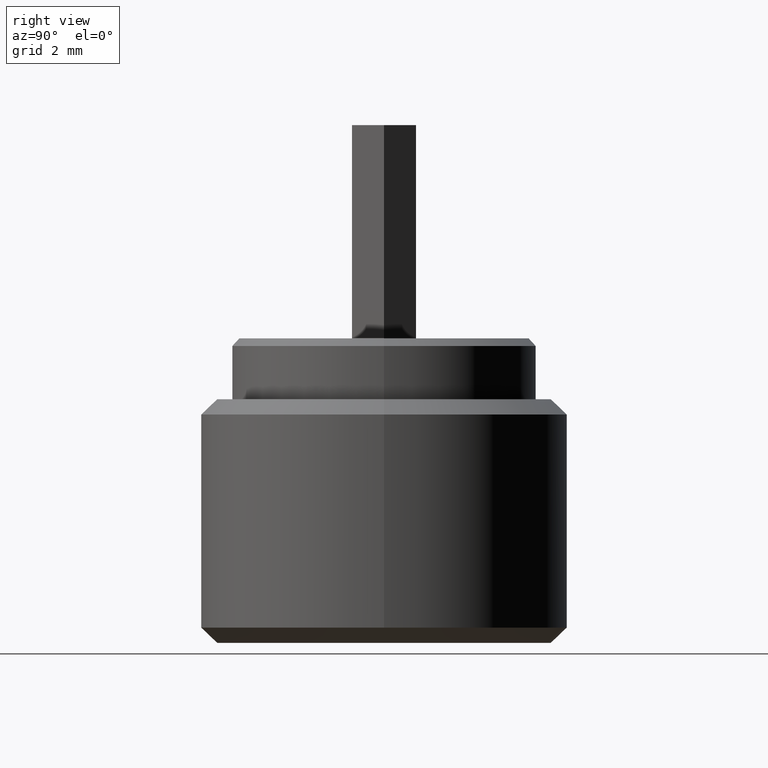
[diagram: clean part render]
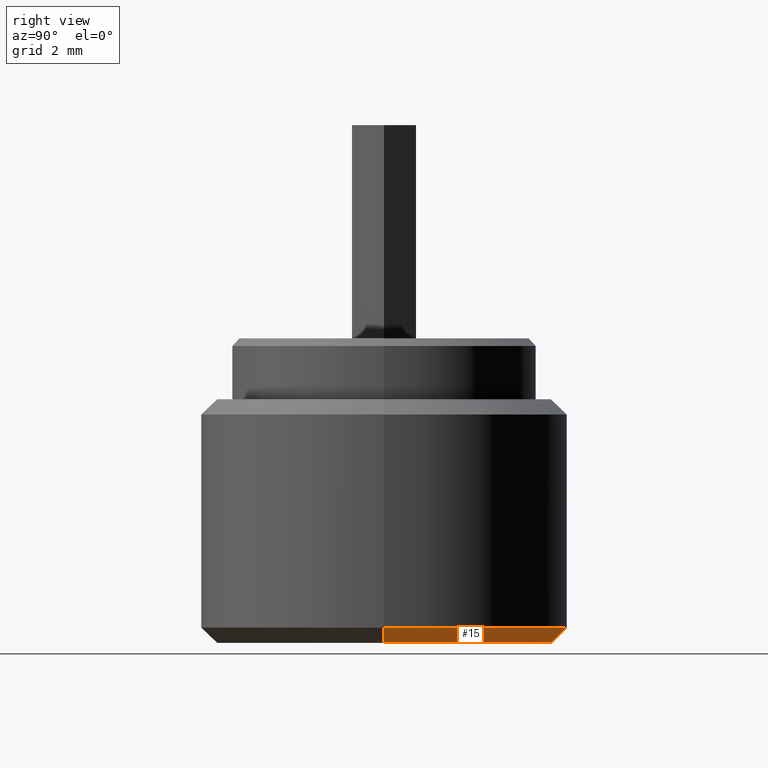
[diagram: same view with one face highlighted and labeled with its STEP entity id]
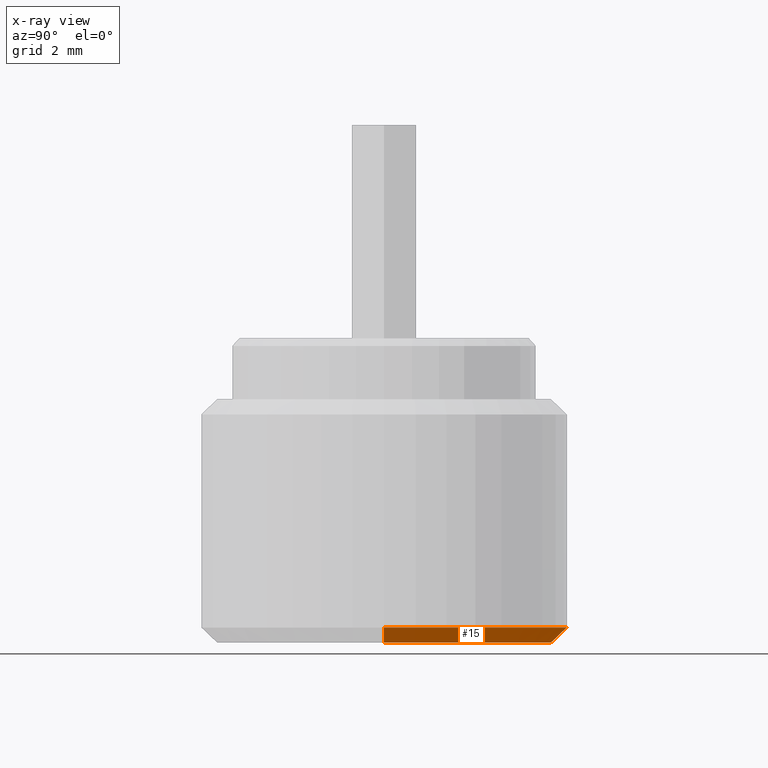
[diagram: x-ray of the same camera — body ghosted, the highlighted face saturated]
A machine part, right view. The second image highlights one B-rep face of the part: STEP entity #15.
The next image is the same camera in x-ray: the body ghosted, the highlighted face saturated — about 0% of this face is hidden behind the body in this view.
In plain terms, the highlighted conical surface has half-angle 45 deg.
Its self-contained STEP definition (entity closure, byte-faithful):
#15 = ADVANCED_FACE ( 'NONE', ( #769 ), #267, .T. ) ;
#35 = ORIENTED_EDGE ( 'NONE', *, *, #300, .F. ) ;
#47 = CARTESIAN_POINT ( 'NONE',  ( 0.000000000000000000, 0.000000000000000000, 0.000000000000000000 ) ) ;
#63 = VERTEX_POINT ( 'NONE', #472 ) ;
#101 = VERTEX_POINT ( 'NONE', #774 ) ;
#106 = DIRECTION ( 'NONE',  ( 0.7071067811865487940, 0.000000000000000000, 0.7071067811865463515 ) ) ;
#110 = AXIS2_PLACEMENT_3D ( 'NONE', #550, #872, #951 ) ;
#118 = CARTESIAN_POINT ( 'NONE',  ( 6.000000000000000888, 0.000000000000000000, 0.4999999999999987232 ) ) ;
#128 = DIRECTION ( 'NONE',  ( 1.000000000000000000, 0.000000000000000000, 0.000000000000000000 ) ) ;
#169 = ORIENTED_EDGE ( 'NONE', *, *, #606, .T. ) ;
#172 = DIRECTION ( 'NONE',  ( 1.000000000000000000, 0.000000000000000000, 0.000000000000000000 ) ) ;
#230 = EDGE_CURVE ( 'NONE', #545, #63, #985, .T. ) ;
#244 = CARTESIAN_POINT ( 'NONE',  ( 6.000000000000000888, 7.347880794884120722E-16, 0.4999999999999987232 ) ) ;
#267 = CONICAL_SURFACE ( 'NONE', #825, 6.000000000000000888, 0.7853981633974500554 ) ;
#294 = EDGE_LOOP ( 'NONE', ( #900, #169, #318, #35 ) ) ;
#300 = EDGE_CURVE ( 'NONE', #931, #545, #787, .T. ) ;
#318 = ORIENTED_EDGE ( 'NONE', *, *, #230, .F. ) ;
#351 = DIRECTION ( 'NONE',  ( -0.000000000000000000, -0.000000000000000000, -1.000000000000000000 ) ) ;
#361 = EDGE_CURVE ( 'NONE', #101, #931, #489, .T. ) ;
#375 = DIRECTION ( 'NONE',  ( -0.7071067811865487940, 8.659560562354950115E-17, 0.7071067811865463515 ) ) ;
#436 = VECTOR ( 'NONE', #375, 1000.000000000000000 ) ;
#472 = CARTESIAN_POINT ( 'NONE',  ( -6.000000000000000888, 0.000000000000000000, 0.4999999999999987232 ) ) ;
#489 = CIRCLE ( 'NONE', #696, 5.500000000000000888 ) ;
#543 = CARTESIAN_POINT ( 'NONE',  ( -6.000000000000000888, 7.347880794884120722E-16, 0.4999999999999987232 ) ) ;
#545 = VERTEX_POINT ( 'NONE', #244 ) ;
#550 = CARTESIAN_POINT ( 'NONE',  ( 0.000000000000000000, 0.000000000000000000, 0.4999999999999987232 ) ) ;
#557 = CARTESIAN_POINT ( 'NONE',  ( 5.500000000000000888, 0.000000000000000000, 0.000000000000000000 ) ) ;
#567 = VECTOR ( 'NONE', #106, 1000.000000000000000 ) ;
#606 = EDGE_CURVE ( 'NONE', #101, #63, #841, .T. ) ;
#685 = DIRECTION ( 'NONE',  ( -0.000000000000000000, -0.000000000000000000, 1.000000000000000000 ) ) ;
#696 = AXIS2_PLACEMENT_3D ( 'NONE', #47, #351, #128 ) ;
#769 = FACE_OUTER_BOUND ( 'NONE', #294, .T. ) ;
#774 = CARTESIAN_POINT ( 'NONE',  ( -5.500000000000000888, 7.041719095097281866E-16, 0.000000000000000000 ) ) ;
#787 = LINE ( 'NONE', #118, #567 ) ;
#825 = AXIS2_PLACEMENT_3D ( 'NONE', #989, #685, #172 ) ;
#841 = LINE ( 'NONE', #543, #436 ) ;
#872 = DIRECTION ( 'NONE',  ( -0.000000000000000000, -0.000000000000000000, 1.000000000000000000 ) ) ;
#900 = ORIENTED_EDGE ( 'NONE', *, *, #361, .F. ) ;
#931 = VERTEX_POINT ( 'NONE', #557 ) ;
#951 = DIRECTION ( 'NONE',  ( 1.000000000000000000, 0.000000000000000000, 0.000000000000000000 ) ) ;
#985 = CIRCLE ( 'NONE', #110, 6.000000000000000888 ) ;
#989 = CARTESIAN_POINT ( 'NONE',  ( 0.000000000000000000, 0.000000000000000000, 0.4999999999999987232 ) ) ;